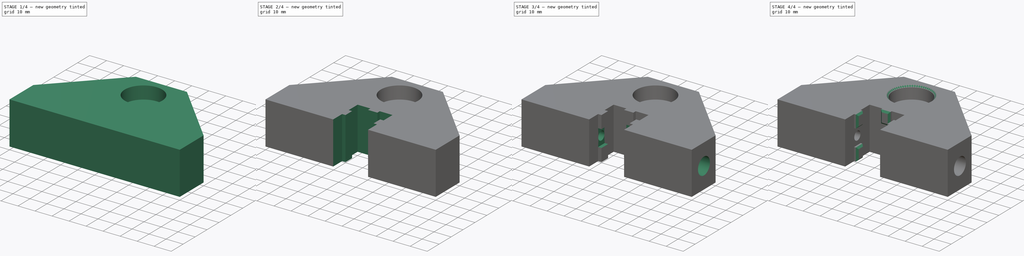
[diagram: build sequence overview — one tinted view per stage of 4, left to right]
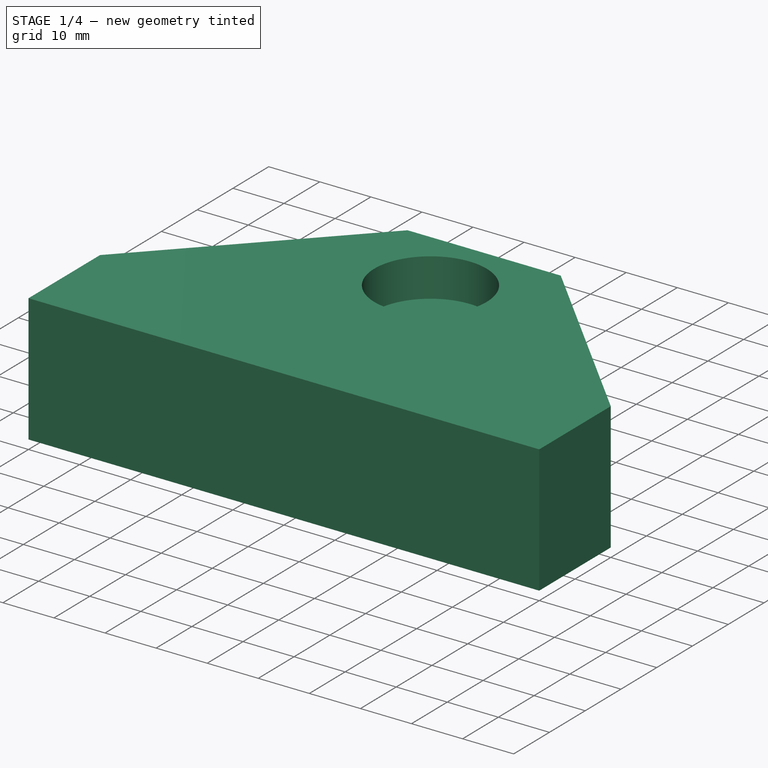
[diagram: stage 1 of 4 — iso view after this stage's code; geometry added in this stage tinted green]
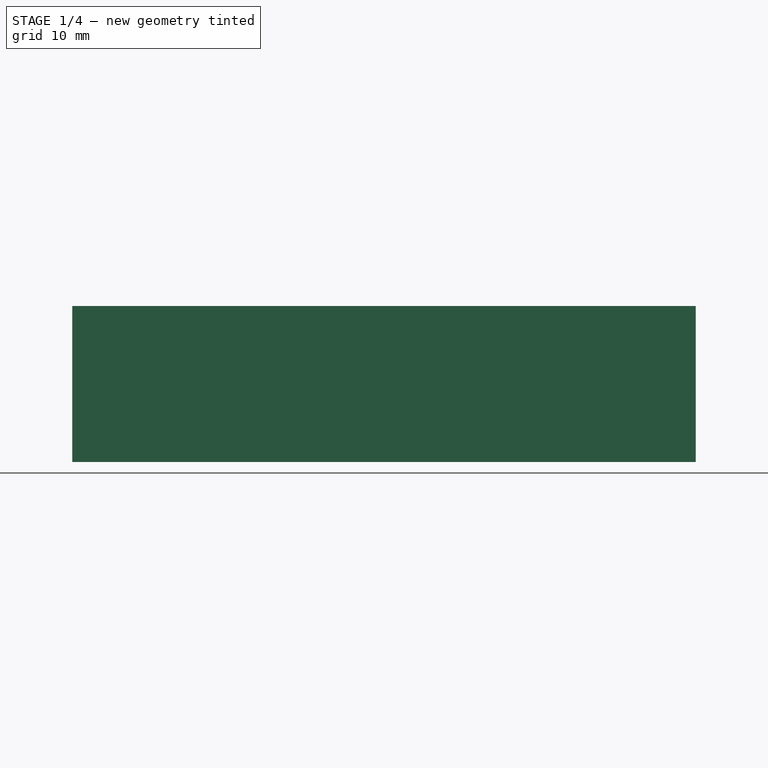
[diagram: stage 1 of 4 — front view after this stage's code; geometry added in this stage tinted green]
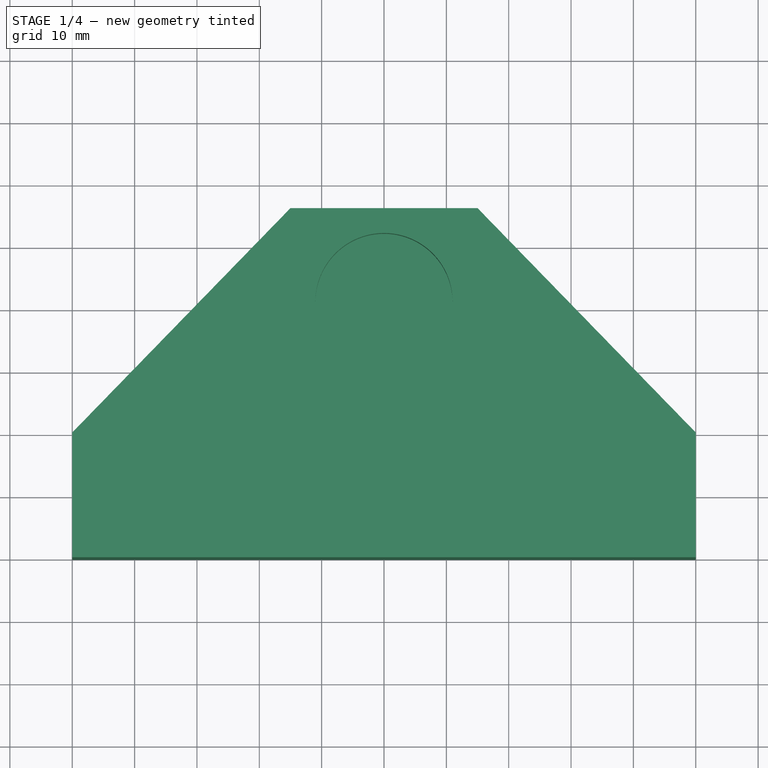
[diagram: stage 1 of 4 — top view after this stage's code; geometry added in this stage tinted green]
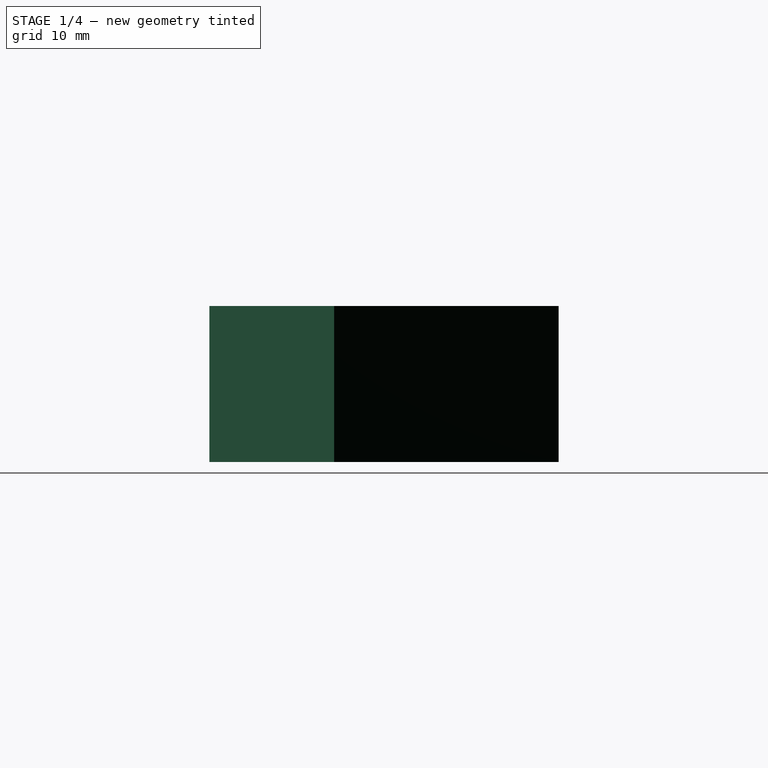
[diagram: stage 1 of 4 — right view after this stage's code; geometry added in this stage tinted green]
FCSTD DOCUMENT  (FreeCAD 0.17R8073 (Git))
Label: Drive_rod_run_out_fixture_headstock_sliding
License: CreativeCommons Attribution-ShareAlike
LicenseURL: http://creativecommons.org/licenses/by-sa/4.0/
objects: Sketcher::SketchObject×8, PartDesign::Pocket×7, PartDesign::Pad×1, PartDesign::Chamfer×1, PartDesign::Body×1, Part::Feature×1
note: 27 computed .brp shape members not serialized (recipe doc carries the construction recipe); baked Part::Feature solids carry a one-line shape summary decoded from their .brp

FEATURE [Sketcher::SketchObject] Sketch
  MapMode = 5
  Support = -> [XY_Plane]
  sketch-geometry (6):
    g0: LineSegment StartX=0 StartY=0 StartZ=0 EndX=100 EndY=0 EndZ=0
    g1: LineSegment StartX=100 StartY=0 StartZ=0 EndX=100 EndY=20 EndZ=0
    g2: LineSegment StartX=100 StartY=20 StartZ=0 EndX=65 EndY=56 EndZ=0
    g3: LineSegment StartX=65 StartY=56 StartZ=0 EndX=35 EndY=56 EndZ=0
    g4: LineSegment StartX=35 StartY=56 StartZ=0 EndX=0 EndY=20 EndZ=0
    g5: LineSegment StartX=0 StartY=20 StartZ=0 EndX=0 EndY=0 EndZ=0
  constraints (17):
    c: Horizontal(g0)
    c: Coincident(g0,g1)
    c: Coincident(g1,g2)
    c: Coincident(g2,g3)
    c: Coincident(g3,g4)
    c: Coincident(g4,g5)
    c: Coincident(g0,g5)
    c: Vertical(g5)
    c: Vertical(g1)
    c: Horizontal(g3)
    c: Coincident(g0,g-1)
    c: Equal(g1,g5)
    c: Equal(g2,g4)
    c: DistanceY(g5,g5) = 20
    c: DistanceX(g3,g3) = 30
    c: DistanceY(g4,g3) = 36
    c: DistanceX(g0,g0) = 100
FEATURE [PartDesign::Pad] Pad
  Length = 25
  Length2 = 100
  Profile = -> Sketch
  Type = 0
FEATURE [Sketcher::SketchObject] Sketch001
  ExternalGeometry = -> [Pad]
  MapMode = 5
  Placement = pos=(0,0,25) rot=(0,0,1;0rad)
  Support = -> [Pad]
  sketch-geometry (1):
    g0: Circle CenterX=50 CenterY=41 CenterZ=0 NormalX=0 NormalY=0 NormalZ=1 Radius=11
  constraints (3):
    c: Radius(g0) = 11
    c: DistanceX(g-3,g0) = 15
    c: DistanceY(g0,g-3) = 15
FEATURE [PartDesign::Pocket] Pocket
  BaseFeature = -> Pad
  Length = 7.5
  Profile = -> Sketch001
  Type = 0
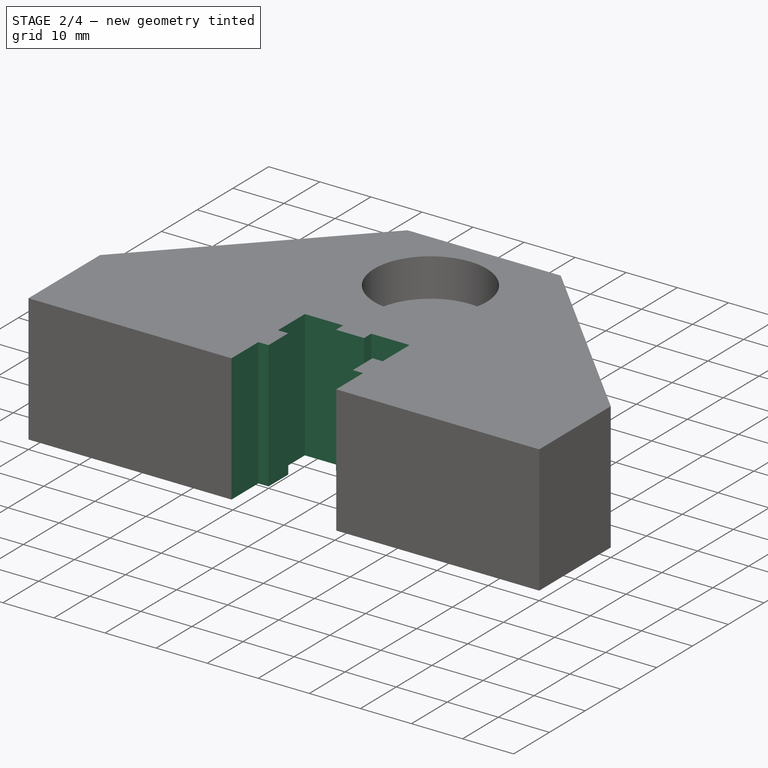
[diagram: stage 2 of 4 — iso view after this stage's code; geometry added in this stage tinted green]
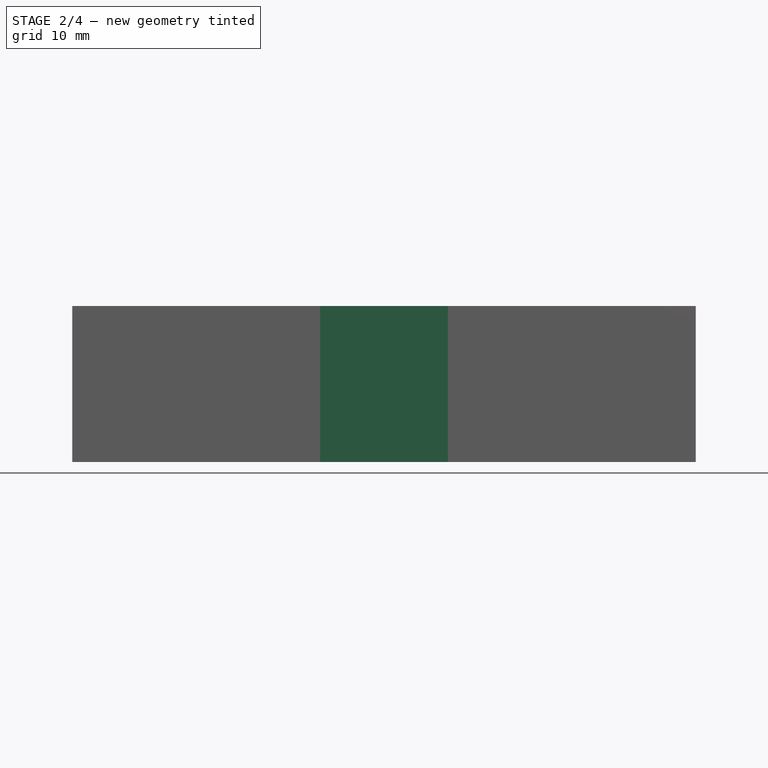
[diagram: stage 2 of 4 — front view after this stage's code; geometry added in this stage tinted green]
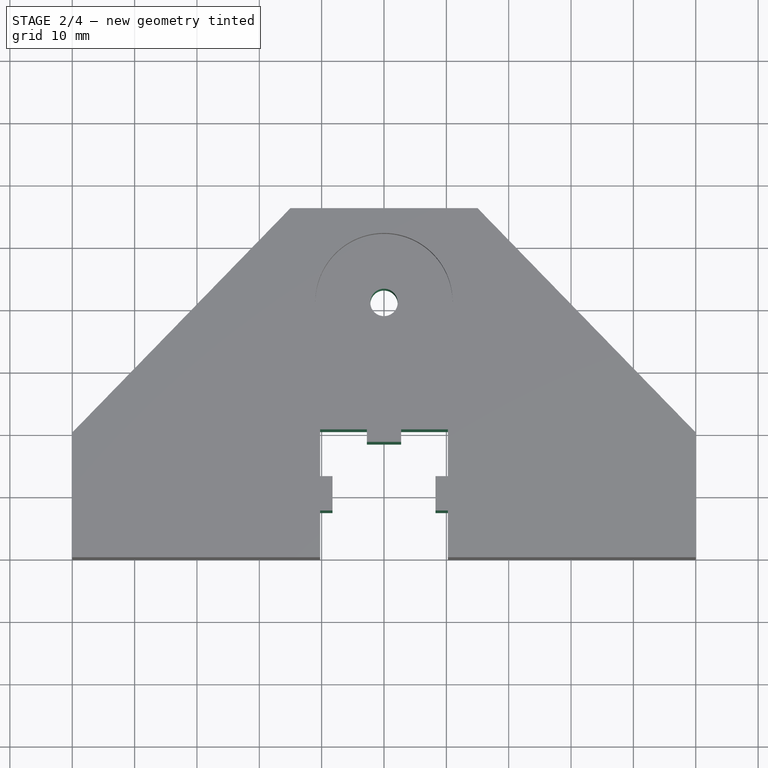
[diagram: stage 2 of 4 — top view after this stage's code; geometry added in this stage tinted green]
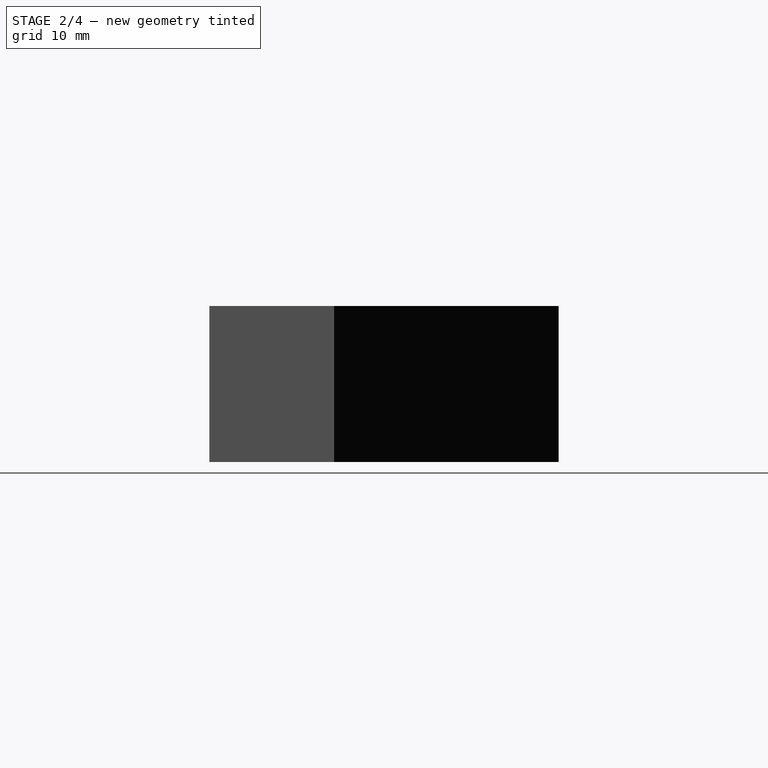
[diagram: stage 2 of 4 — right view after this stage's code; geometry added in this stage tinted green]
FEATURE [Sketcher::SketchObject] Sketch002
  ExternalGeometry = -> [Pocket]
  MapMode = 5
  Placement = pos=(0,0,17.5) rot=(0,0,1;0rad)
  Support = -> [Pocket]
  sketch-geometry (1):
    g0: Circle CenterX=50 CenterY=41 CenterZ=0 NormalX=0 NormalY=0 NormalZ=1 Radius=2.2
  constraints (2):
    c: Coincident(g0,g-3)
    c: Radius(g0) = 2.2
FEATURE [PartDesign::Pocket] Pocket001
  BaseFeature = -> Pocket
  Length = 5
  Profile = -> Sketch002
  Type = 1
FEATURE [Sketcher::SketchObject] Sketch003
  ExternalGeometry = -> [Pocket001]
  MapMode = 5
  Placement = pos=(0,0,25) rot=(0,0,1;0rad)
  Support = -> [Pocket001]
  sketch-geometry (16):
    g0: LineSegment StartX=39.75 StartY=0 StartZ=0 EndX=60.25 EndY=0 EndZ=0
    g1: LineSegment StartX=60.25 StartY=0 StartZ=0 EndX=60.25 EndY=7.5 EndZ=0
    g2: LineSegment StartX=60.25 StartY=20.5 StartZ=0 EndX=52.75 EndY=20.5 EndZ=0
    g3: LineSegment StartX=39.75 StartY=20.5 StartZ=0 EndX=39.75 EndY=13 EndZ=0
    g4: LineSegment StartX=41.75 StartY=7.5 StartZ=0 EndX=39.75 EndY=7.5 EndZ=0
    g5: LineSegment StartX=39.75 StartY=13 StartZ=0 EndX=41.75 EndY=13 EndZ=0
    g6: LineSegment StartX=41.75 StartY=13 StartZ=0 EndX=41.75 EndY=7.5 EndZ=0
    g7: LineSegment StartX=52.75 StartY=18.5 StartZ=0 EndX=47.25 EndY=18.5 EndZ=0
    g8: LineSegment StartX=47.25 StartY=18.5 StartZ=0 EndX=47.25 EndY=20.5 EndZ=0
    g9: LineSegment StartX=52.75 StartY=20.5 StartZ=0 EndX=52.75 EndY=18.5 EndZ=0
    g10: LineSegment StartX=60.25 StartY=7.5 StartZ=0 EndX=58.25 EndY=7.5 EndZ=0
    g11: LineSegment StartX=58.25 StartY=7.5 StartZ=0 EndX=58.25 EndY=13 EndZ=0
    g12: LineSegment StartX=58.25 StartY=13 StartZ=0 EndX=60.25 EndY=13 EndZ=0
    g13: LineSegment StartX=39.75 StartY=7.5 StartZ=0 EndX=39.75 EndY=0 EndZ=0
    g14: LineSegment StartX=47.25 StartY=20.5 StartZ=0 EndX=39.75 EndY=20.5 EndZ=0
    g15: LineSegment StartX=60.25 StartY=13 StartZ=0 EndX=60.25 EndY=20.5 EndZ=0
  constraints (50):
    c: Coincident(g0,g1)
    c: Coincident(g15,g2)
    c: Coincident(g14,g3)
    c: Coincident(g13,g0)
    c: Horizontal(g0)
    c: Horizontal(g2)
    c: Vertical(g1)
    c: Vertical(g3)
    c: DistanceY(g13,g3) = 20.5
    c: DistanceX(g14,g2) = 20.5
    c: DistanceX(g-1,g0) = 39.75
    c: PointOnObject(g0,g-1)
    c: Coincident(g5,g6)
    c: Coincident(g6,g4)
    c: Horizontal(g4)
    c: Horizontal(g5)
    c: Vertical(g6)
    c: Coincident(g7,g8)
    c: Coincident(g9,g7)
    c: Horizontal(g7)
    c: Vertical(g8)
    c: Vertical(g9)
    c: Coincident(g10,g11)
    c: Coincident(g11,g12)
    c: Horizontal(g10)
    c: Horizontal(g12)
    c: Vertical(g11)
    c: Equal(g7,g6)
    c: DistanceY(g6,g6) = 5.5
    c: DistanceY(g5,g11) = 0
    c: DistanceY(g0,g4) = 7.5
    c: Tangent(g3,g13)
    c: Coincident(g14,g8)
    c: Tangent(g2,g14)
    c: Coincident(g15,g12)
    c: Tangent(g1,g15)
    c: Equal(g13,g1)
    c: Equal(g1,g15)
    c: Equal(g15,g3)
    c: Equal(g3,g2)
    c: Equal(g2,g14)
    c: Coincident(g2,g9)
    c: Coincident(g1,g10)
    c: Coincident(g3,g5)
    c: Coincident(g4,g13)
    c: Equal(g11,g7)
    c: Equal(g7,g6)
    c: Equal(g9,g12)
    c: Equal(g12,g5)
    c: DistanceY(g8,g8) = 2
FEATURE [PartDesign::Pocket] Pocket002
  BaseFeature = -> Pocket001
  Length = 5
  Profile = -> Sketch003
  Type = 1
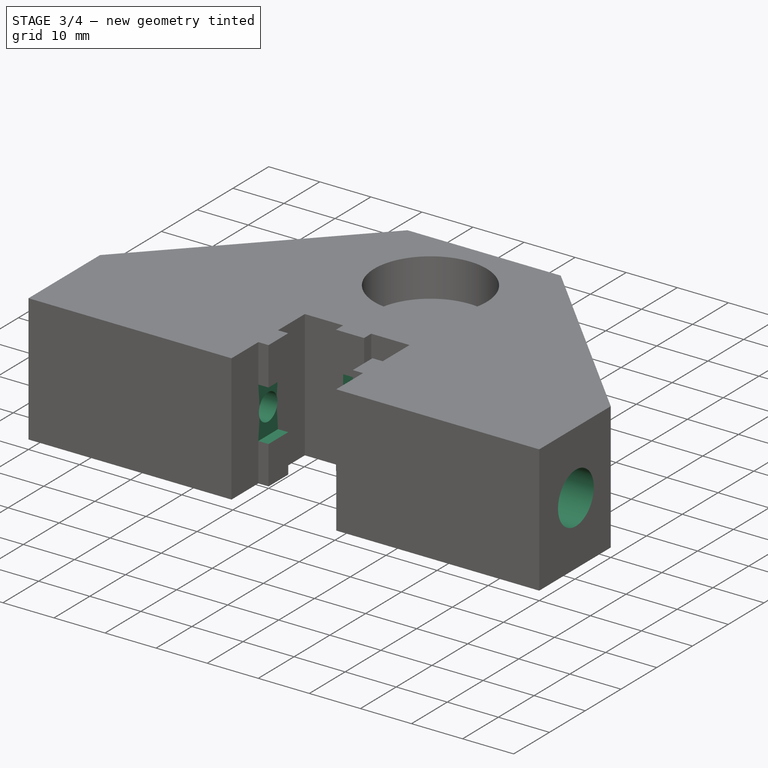
[diagram: stage 3 of 4 — iso view after this stage's code; geometry added in this stage tinted green]
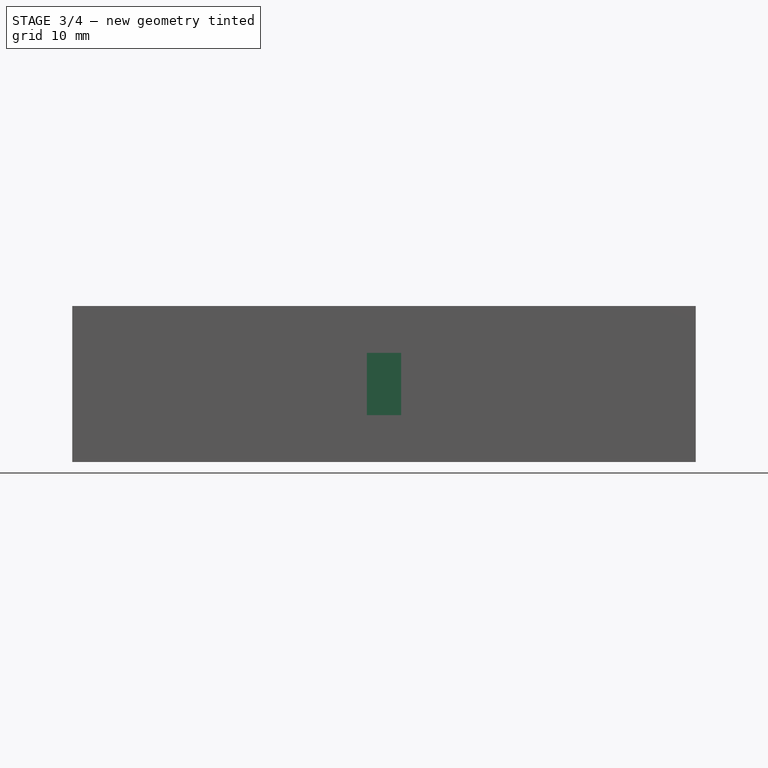
[diagram: stage 3 of 4 — front view after this stage's code; geometry added in this stage tinted green]
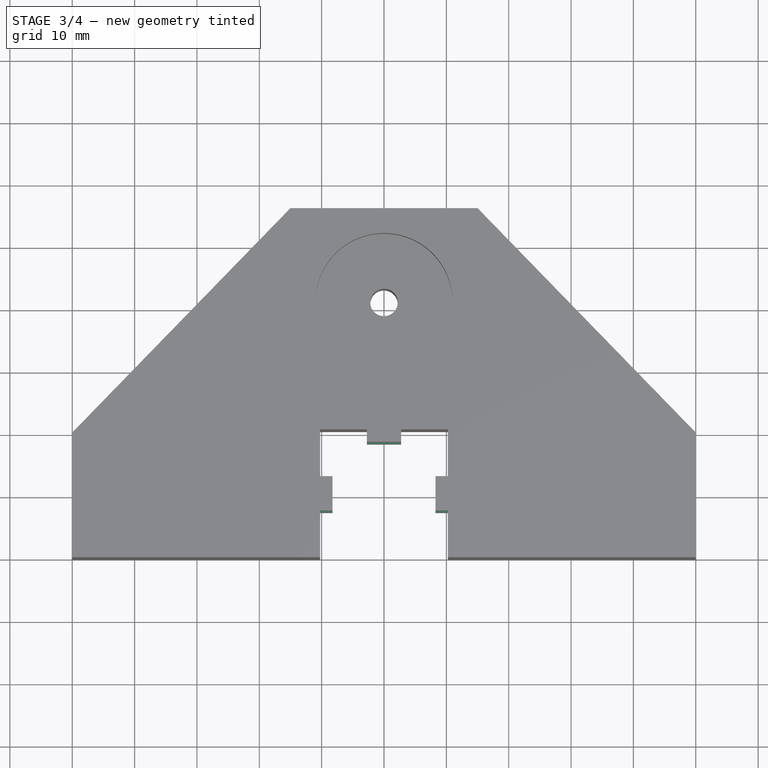
[diagram: stage 3 of 4 — top view after this stage's code; geometry added in this stage tinted green]
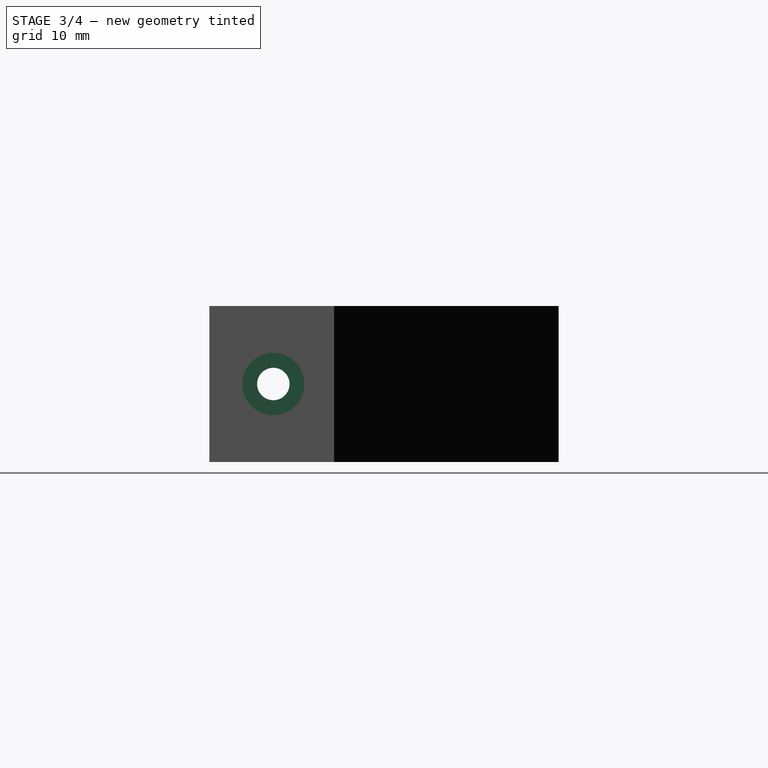
[diagram: stage 3 of 4 — right view after this stage's code; geometry added in this stage tinted green]
FEATURE [Sketcher::SketchObject] Sketch004
  MapMode = 5
  Placement = pos=(100,0,0) rot=(0.57735,0.57735,0.57735;2.0944rad)
  Support = -> [Pocket002]
  sketch-geometry (1):
    g0: Circle CenterX=10.25 CenterY=12.5 CenterZ=0 NormalX=0 NormalY=0 NormalZ=1 Radius=2.6
  constraints (3):
    c: Radius(g0) = 2.6
    c: DistanceY(g-1,g0) = 12.5
    c: DistanceX(g-1,g0) = 10.25
FEATURE [PartDesign::Pocket] Pocket003
  BaseFeature = -> Pocket002
  Length = 5
  Profile = -> Sketch004
  Type = 1
FEATURE [Sketcher::SketchObject] Sketch005
  ExternalGeometry = -> [Pocket003]
  MapMode = 5
  Placement = pos=(100,0,0) rot=(0.57735,0.57735,0.57735;2.0944rad)
  Support = -> [Pocket003]
  sketch-geometry (1):
    g0: Circle CenterX=10.25 CenterY=12.5 CenterZ=0 NormalX=0 NormalY=0 NormalZ=1 Radius=5
  constraints (2):
    c: Coincident(g0,g-3)
    c: Radius(g0) = 5
FEATURE [PartDesign::Pocket] Pocket004
  BaseFeature = -> Pocket003
  Length = 36.25
  Profile = -> Sketch005
  Type = 0
FEATURE [Sketcher::SketchObject] Sketch009
  MapMode = 5
  Placement = pos=(0,0,0) rot=(1,0,0;1.5708rad)
  Support = -> [Pocket004]
  sketch-geometry (4):
    g0: LineSegment StartX=39.75 StartY=7.5 StartZ=0 EndX=60.25 EndY=7.5 EndZ=0
    g1: LineSegment StartX=60.25 StartY=7.5 StartZ=0 EndX=60.25 EndY=17.5 EndZ=0
    g2: LineSegment StartX=60.25 StartY=17.5 StartZ=0 EndX=39.75 EndY=17.5 EndZ=0
    g3: LineSegment StartX=39.75 StartY=17.5 StartZ=0 EndX=39.75 EndY=7.5 EndZ=0
  constraints (9):
    c: Coincident(g0,g1)
    c: Coincident(g1,g2)
    c: Coincident(g2,g3)
    c: Coincident(g3,g0)
    c: Horizontal(g0)
    c: Horizontal(g2)
    c: Vertical(g1)
    c: Vertical(g3)
    c: DistanceY(g0,g2) = 10
FEATURE [PartDesign::Pocket] Pocket005
  BaseFeature = -> Pocket004
  Length = 0
  Profile = -> Sketch009
  Type = 3
  UpToFace = -> Pocket004 [Face10]
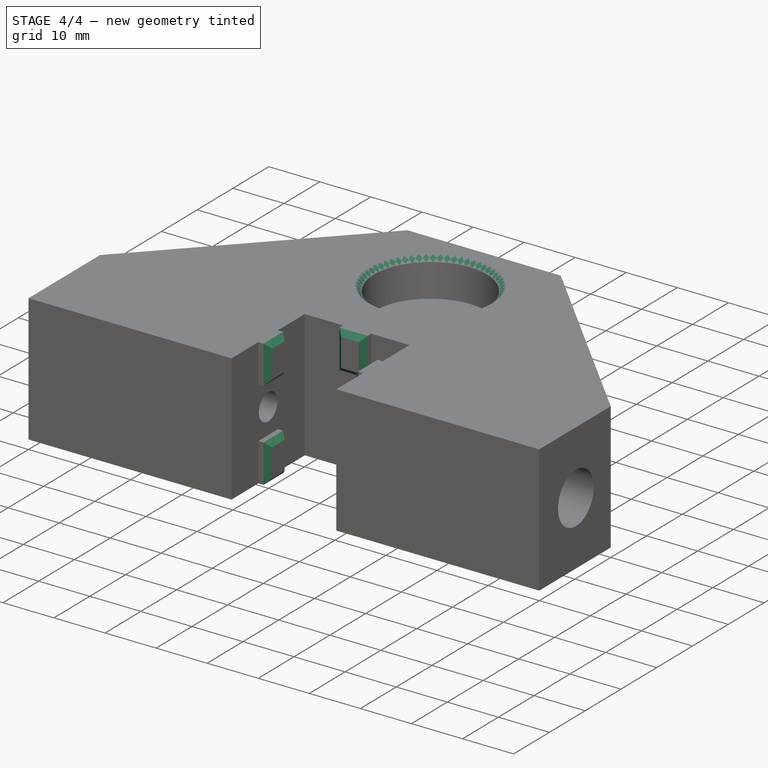
[diagram: stage 4 of 4 — iso view after this stage's code; geometry added in this stage tinted green]
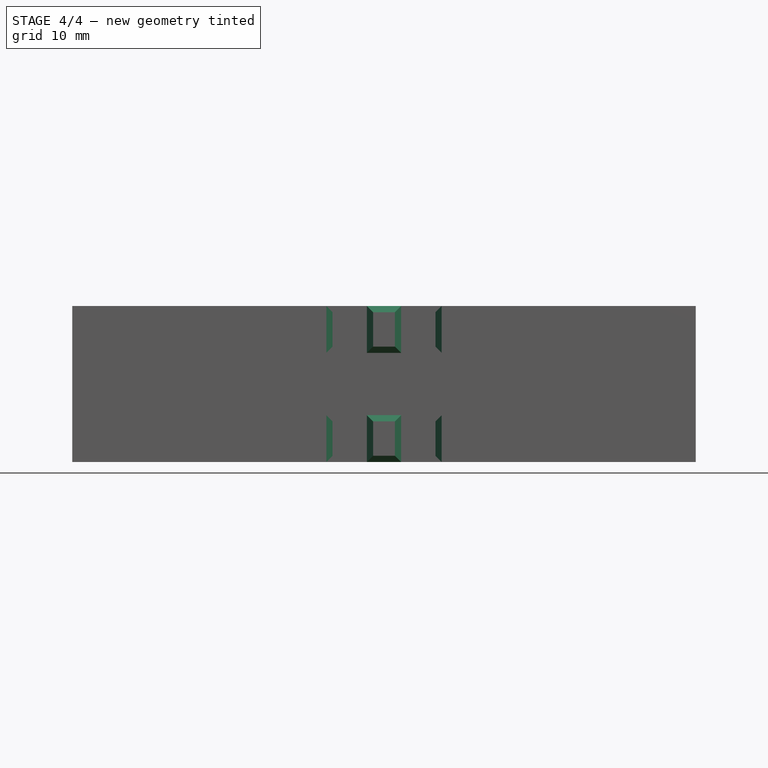
[diagram: stage 4 of 4 — front view after this stage's code; geometry added in this stage tinted green]
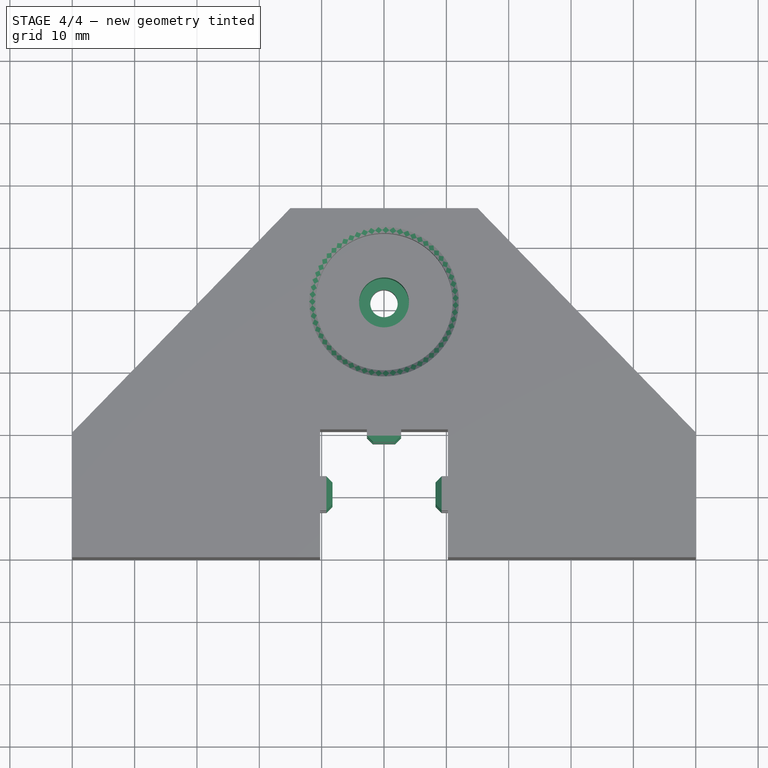
[diagram: stage 4 of 4 — top view after this stage's code; geometry added in this stage tinted green]
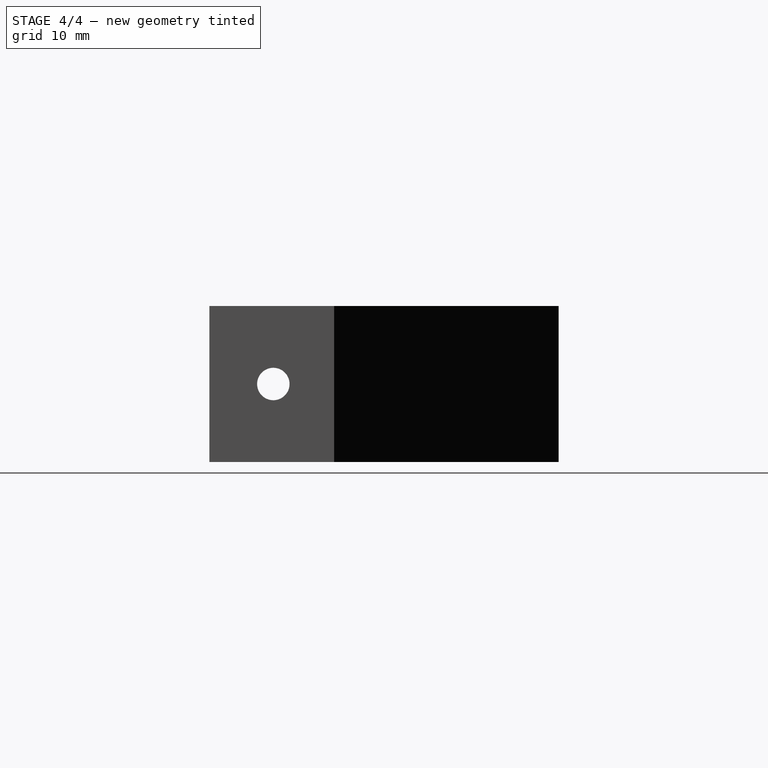
[diagram: stage 4 of 4 — right view after this stage's code; geometry added in this stage tinted green]
FEATURE [Sketcher::SketchObject] Sketch010
  ExternalGeometry = -> [Pocket005]
  MapMode = 5
  Placement = pos=(0,0,17.5) rot=(0,0,1;0rad)
  Support = -> [Pocket005]
  sketch-geometry (1):
    g0: Circle CenterX=50 CenterY=41 CenterZ=0 NormalX=0 NormalY=0 NormalZ=1 Radius=4
  constraints (2):
    c: Radius(g0) = 4
    c: Coincident(g0,g-3)
FEATURE [PartDesign::Pocket] Pocket006
  BaseFeature = -> Pocket005
  Length = 10
  Profile = -> Sketch010
  Type = 0
FEATURE [PartDesign::Chamfer] Chamfer
  Base = -> Pocket006 [Face19,Face40,Face35,Face14,Face9,Face30,Edge54]
  BaseFeature = -> Pocket006
  Size = 1
FEATURE [PartDesign::Body] Body
  Model = -> [Sketch,Pad,Sketch001,Pocket,Sketch002,Pocket001,Sketch003,Pocket002,Sketch004,Pocket003,Sketch005,Pocket004,Sketch009,Pocket005,Sketch010,Pocket006,Chamfer]
  Origin = -> BodyOrigin
  Tip = -> Chamfer
FEATURE [Part::Feature] Chamfer001
  shape: bbox 100 x 56 x 25 mm, 70 faces (baked)
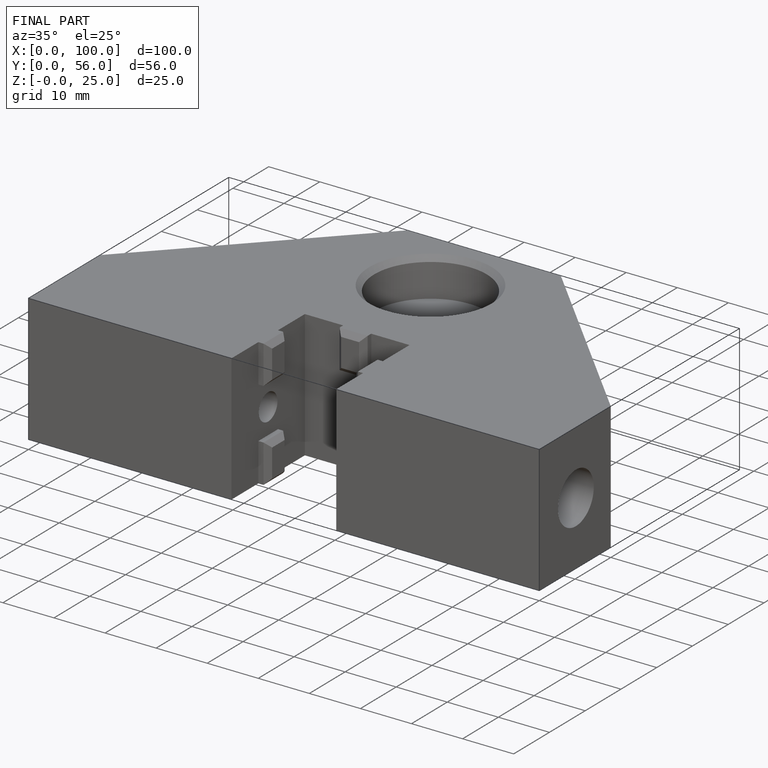
[diagram: finished part — iso view with bounding-box wireframe]
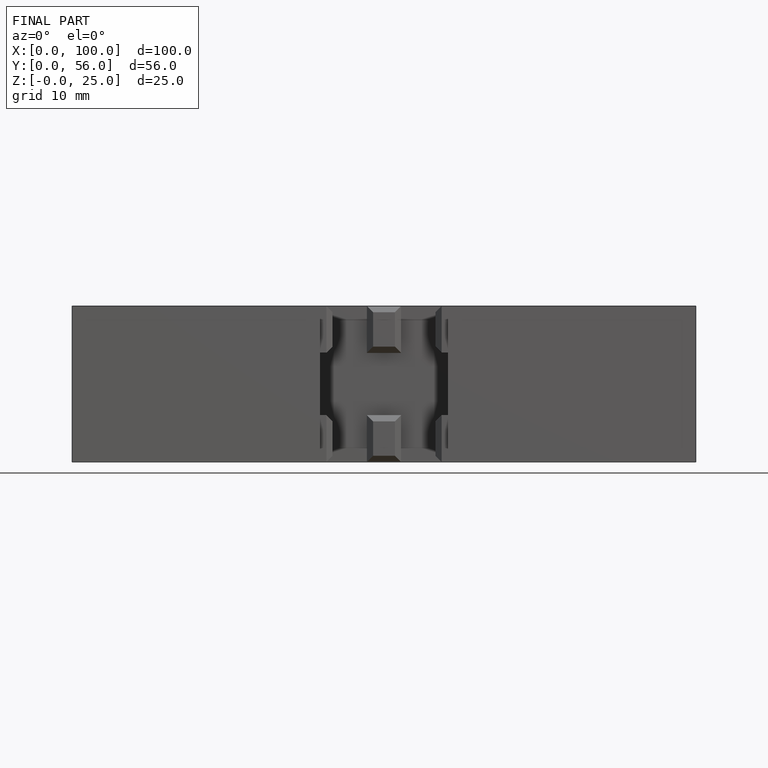
[diagram: finished part — front view with bounding-box wireframe]
